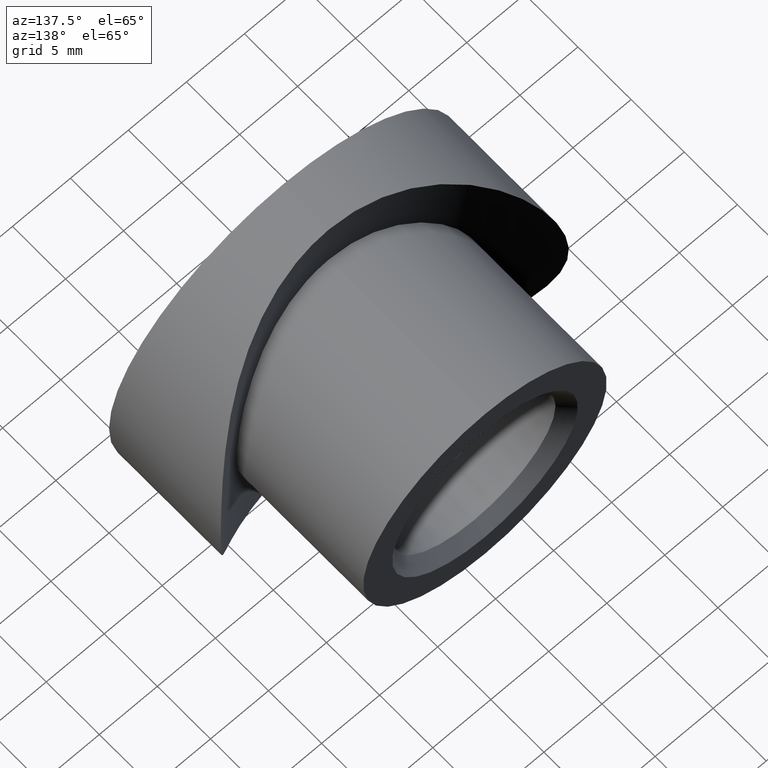
[diagram: clean part render]
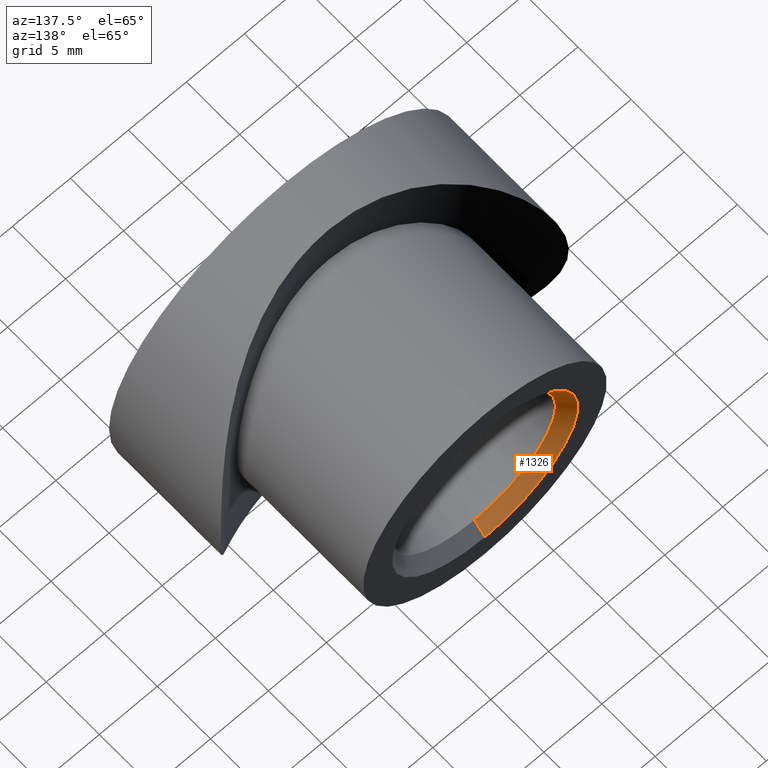
[diagram: same view with one face highlighted and labeled with its STEP entity id]
A machine part, auxiliary view. The second image highlights one B-rep face of the part: STEP entity #1326.
In plain terms, the highlighted conical surface has half-angle 45 deg.
Its self-contained STEP definition (entity closure, byte-faithful):
#478 = CARTESIAN_POINT ( 'NONE',  ( 8.572527594031464300E-016, 17.99999999999999600, -6.999999999999992900 ) ) ;
#532 = ORIENTED_EDGE ( 'NONE', *, *, #892, .T. ) ;
#892 = EDGE_CURVE ( 'NONE', #1446, #13583, #12525, .T. ) ;
#1214 = ORIENTED_EDGE ( 'NONE', *, *, #9202, .F. ) ;
#1326 = ADVANCED_FACE ( 'NONE', ( #8976 ), #2969, .F. ) ;
#1446 = VERTEX_POINT ( 'NONE', #3519 ) ;
#1519 = DIRECTION ( 'NONE',  ( 8.659560562354944000E-017, 0.7071067811865465700, -0.7071067811865484600 ) ) ;
#1709 = DIRECTION ( 'NONE',  ( 0.0000000000000000000, 0.0000000000000000000, -1.000000000000000000 ) ) ;
#2359 = CIRCLE ( 'NONE', #11745, 8.000000000000000000 ) ;
#2491 = DIRECTION ( 'NONE',  ( 0.0000000000000000000, 0.7071067811865465700, 0.7071067811865484600 ) ) ;
#2602 = EDGE_LOOP ( 'NONE', ( #13693, #532, #1214, #13567 ) ) ;
#2691 = CARTESIAN_POINT ( 'NONE',  ( 0.0000000000000000000, 19.00000000000000000, 8.000000000000000000 ) ) ;
#2969 = CONICAL_SURFACE ( 'NONE', #9670, 6.999999999999992900, 0.7853981633974496100 ) ;
#3338 = DIRECTION ( 'NONE',  ( 0.0000000000000000000, 0.0000000000000000000, -1.000000000000000000 ) ) ;
#3519 = CARTESIAN_POINT ( 'NONE',  ( 8.572527594031464300E-016, 17.99999999999999600, -6.999999999999992900 ) ) ;
#4164 = VECTOR ( 'NONE', #1519, 1000.000000000000000 ) ;
#4673 = EDGE_CURVE ( 'NONE', #13677, #10190, #8103, .T. ) ;
#6102 = EDGE_CURVE ( 'NONE', #1446, #13677, #6217, .T. ) ;
#6217 = CIRCLE ( 'NONE', #7146, 6.999999999999992900 ) ;
#6491 = DIRECTION ( 'NONE',  ( 0.0000000000000000000, 1.000000000000000000, 0.0000000000000000000 ) ) ;
#7146 = AXIS2_PLACEMENT_3D ( 'NONE', #11486, #13064, #3338 ) ;
#7618 = CARTESIAN_POINT ( 'NONE',  ( 0.0000000000000000000, 17.99999999999999600, 6.999999999999992900 ) ) ;
#8103 = LINE ( 'NONE', #7618, #10113 ) ;
#8976 = FACE_OUTER_BOUND ( 'NONE', #2602, .T. ) ;
#9202 = EDGE_CURVE ( 'NONE', #10190, #13583, #2359, .T. ) ;
#9670 = AXIS2_PLACEMENT_3D ( 'NONE', #12955, #6491, #10841 ) ;
#10113 = VECTOR ( 'NONE', #2491, 1000.000000000000000 ) ;
#10190 = VERTEX_POINT ( 'NONE', #2691 ) ;
#10841 = DIRECTION ( 'NONE',  ( 0.0000000000000000000, 0.0000000000000000000, 1.000000000000000000 ) ) ;
#11052 = CARTESIAN_POINT ( 'NONE',  ( 0.0000000000000000000, 19.00000000000000000, 0.0000000000000000000 ) ) ;
#11323 = DIRECTION ( 'NONE',  ( 0.0000000000000000000, -1.000000000000000000, 0.0000000000000000000 ) ) ;
#11486 = CARTESIAN_POINT ( 'NONE',  ( 0.0000000000000000000, 17.99999999999999600, 0.0000000000000000000 ) ) ;
#11745 = AXIS2_PLACEMENT_3D ( 'NONE', #11052, #11323, #1709 ) ;
#11776 = CARTESIAN_POINT ( 'NONE',  ( 0.0000000000000000000, 17.99999999999999600, 6.999999999999992900 ) ) ;
#12525 = LINE ( 'NONE', #478, #4164 ) ;
#12544 = CARTESIAN_POINT ( 'NONE',  ( 9.797174393178825700E-016, 19.00000000000000000, -8.000000000000000000 ) ) ;
#12955 = CARTESIAN_POINT ( 'NONE',  ( 0.0000000000000000000, 17.99999999999999600, 0.0000000000000000000 ) ) ;
#13064 = DIRECTION ( 'NONE',  ( 0.0000000000000000000, 1.000000000000000000, 0.0000000000000000000 ) ) ;
#13567 = ORIENTED_EDGE ( 'NONE', *, *, #4673, .F. ) ;
#13583 = VERTEX_POINT ( 'NONE', #12544 ) ;
#13677 = VERTEX_POINT ( 'NONE', #11776 ) ;
#13693 = ORIENTED_EDGE ( 'NONE', *, *, #6102, .F. ) ;